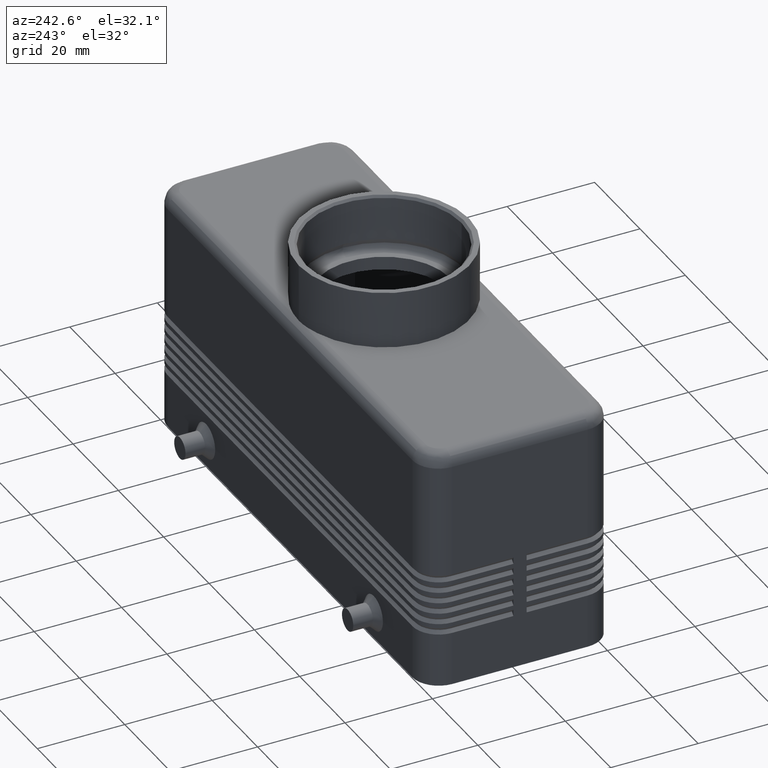
[diagram: clean part render]
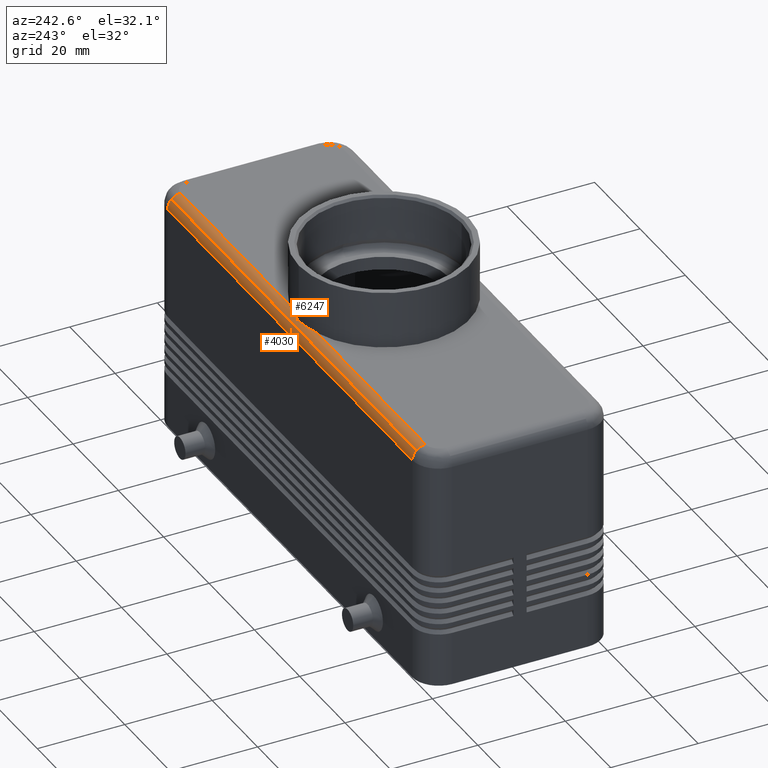
[diagram: same view with one multi-face feature highlighted, each face labeled with its STEP entity id]
A machine part, auxiliary view. The highlighted faces form ONE feature: a constant-radius fillet chain: 2 tangent blend faces with common blend radius 3 mm. The faces share edges in the B-rep.
Their STEP definitions:
[1] entity #4030 (Cylinder):
#2126=CARTESIAN_POINT('',(-53.999999999999986,21.500000000000000,52.000000000000021));
#2127=VERTEX_POINT('',#2126);
#3975=CARTESIAN_POINT('',(53.999999999999993,21.500000000000000,52.0));
#3976=VERTEX_POINT('',#3975);
#3993=CARTESIAN_POINT('',(29.999999999999996,18.500000000000000,52.0));
#3994=DIRECTION('',(-1.0,0.0,0.0));
#3995=DIRECTION('',(0.0,0.707106781186549,0.707106781186546));
#3996=AXIS2_PLACEMENT_3D('',#3993,#3994,#3995);
#3997=CYLINDRICAL_SURFACE('',#3996,3.000000000000000);
#3998=CARTESIAN_POINT('',(53.999999999999993,20.621320343559645,54.121320343559638));
#3999=VERTEX_POINT('',#3998);
#4000=CARTESIAN_POINT('',(-53.999999999999986,20.621320343559638,54.121320343559631));
#4001=VERTEX_POINT('',#4000);
#4002=CARTESIAN_POINT('',(53.999999999999993,20.621320343559645,54.121320343559638));
#4003=DIRECTION('',(-1.0,0.0,0.0));
#4004=VECTOR('',#4003,107.999999999999970);
#4005=LINE('',#4002,#4004);
#4006=EDGE_CURVE('',#3999,#4001,#4005,.T.);
#4007=ORIENTED_EDGE('',*,*,#4006,.F.);
#4008=CARTESIAN_POINT('',(53.999999999999993,18.500000000000000,52.0));
#4009=DIRECTION('',(1.0,0.0,0.0));
#4010=DIRECTION('',(0.0,1.0,0.0));
#4011=AXIS2_PLACEMENT_3D('',#4008,#4009,#4010);
#4012=CIRCLE('',#4011,3.000000000000000);
#4013=EDGE_CURVE('',#3976,#3999,#4012,.T.);
#4014=ORIENTED_EDGE('',*,*,#4013,.F.);
#4015=CARTESIAN_POINT('',(53.999999999999993,21.500000000000000,52.0));
#4016=DIRECTION('',(-1.0,0.0,0.0));
#4017=VECTOR('',#4016,107.999999999999970);
#4018=LINE('',#4015,#4017);
#4019=EDGE_CURVE('',#3976,#2127,#4018,.T.);
#4020=ORIENTED_EDGE('',*,*,#4019,.T.);
#4021=CARTESIAN_POINT('',(-53.999999999999986,18.499999999999996,52.000000000000021));
#4022=DIRECTION('',(-1.0,0.0,0.0));
#4023=DIRECTION('',(0.0,0.0,1.0));
#4024=AXIS2_PLACEMENT_3D('',#4021,#4022,#4023);
#4025=CIRCLE('',#4024,2.999999999999981);
#4026=EDGE_CURVE('',#4001,#2127,#4025,.T.);
#4027=ORIENTED_EDGE('',*,*,#4026,.F.);
#4028=EDGE_LOOP('',(#4007,#4014,#4020,#4027));
#4029=FACE_OUTER_BOUND('',#4028,.T.);
#4030=ADVANCED_FACE('',(#4029),#3997,.T.);
[2] entity #6247 (Cylinder):
#3998=CARTESIAN_POINT('',(53.999999999999993,20.621320343559645,54.121320343559638));
#3999=VERTEX_POINT('',#3998);
#4000=CARTESIAN_POINT('',(-53.999999999999986,20.621320343559638,54.121320343559631));
#4001=VERTEX_POINT('',#4000);
#4002=CARTESIAN_POINT('',(53.999999999999993,20.621320343559645,54.121320343559638));
#4003=DIRECTION('',(-1.0,0.0,0.0));
#4004=VECTOR('',#4003,107.999999999999970);
#4005=LINE('',#4002,#4004);
#4006=EDGE_CURVE('',#3999,#4001,#4005,.T.);
#4746=CARTESIAN_POINT('',(-1.082969E-015,19.499999999999996,54.828427124746192));
#4747=VERTEX_POINT('',#4746);
#4782=CARTESIAN_POINT('',(6.164414002968979,18.500000000000000,55.0));
#4783=VERTEX_POINT('',#4782);
#4791=CARTESIAN_POINT('',(-1.082969E-015,19.499999999999996,54.828427124746192));
#4792=CARTESIAN_POINT('',(1.279961542061538,19.499999999999996,54.828427124746192));
#4793=CARTESIAN_POINT('',(2.672895407569611,19.365767185609325,54.887215126183193));
#4794=CARTESIAN_POINT('',(4.758229113728448,18.925153943836435,54.973843878181583));
#4795=CARTESIAN_POINT('',(5.476012856099071,18.729383225374310,55.0));
#4796=CARTESIAN_POINT('',(6.164414002968979,18.500000000000000,55.0));
#4797=B_SPLINE_CURVE_WITH_KNOTS('',3,(#4791,#4792,#4793,#4794,#4795,#4796),.UNSPECIFIED.,.F.,.U.,(4,2,4),(1.332624346072310,1.716612808690772,1.922147241198828),.UNSPECIFIED.);
#4798=EDGE_CURVE('',#4747,#4783,#4797,.T.);
#5170=CARTESIAN_POINT('',(-6.164414002968979,18.500000000000000,55.0));
#5171=VERTEX_POINT('',#5170);
#5179=CARTESIAN_POINT('',(-53.999999999999986,18.499999999999996,55.0));
#5180=VERTEX_POINT('',#5179);
#5181=CARTESIAN_POINT('',(-53.999999999999986,18.499999999999996,55.0));
#5182=DIRECTION('',(1.0,0.0,0.0));
#5183=VECTOR('',#5182,47.835585997031004);
#5184=LINE('',#5181,#5183);
#5185=EDGE_CURVE('',#5180,#5171,#5184,.T.);
#5353=CARTESIAN_POINT('',(-6.164414002968979,18.500000000000000,55.0));
#5354=CARTESIAN_POINT('',(-5.476012856099072,18.729383225374310,55.0));
#5355=CARTESIAN_POINT('',(-4.758229113728446,18.925153943836435,54.973843878181576));
#5356=CARTESIAN_POINT('',(-2.672895407569612,19.365767185609325,54.887215126183193));
#5357=CARTESIAN_POINT('',(-1.279961542061541,19.499999999999996,54.828427124746192));
#5358=CARTESIAN_POINT('',(-1.082969E-015,19.499999999999996,54.828427124746192));
#5359=B_SPLINE_CURVE_WITH_KNOTS('',3,(#5353,#5354,#5355,#5356,#5357,#5358),.UNSPECIFIED.,.F.,.U.,(4,2,4),(0.743101450945792,0.948635883453848,1.332624346072310),.UNSPECIFIED.);
#5360=EDGE_CURVE('',#5171,#4747,#5359,.T.);
#6123=CARTESIAN_POINT('',(-53.999999999999986,18.499999999999996,52.000000000000021));
#6124=DIRECTION('',(-1.0,0.0,0.0));
#6125=DIRECTION('',(0.0,0.0,1.0));
#6126=AXIS2_PLACEMENT_3D('',#6123,#6124,#6125);
#6127=CIRCLE('',#6126,2.999999999999981);
#6128=EDGE_CURVE('',#5180,#4001,#6127,.T.);
#6199=CARTESIAN_POINT('',(53.999999999999993,18.500000000000000,55.0));
#6200=VERTEX_POINT('',#6199);
#6201=CARTESIAN_POINT('',(53.999999999999993,18.500000000000000,52.0));
#6202=DIRECTION('',(1.0,0.0,0.0));
#6203=DIRECTION('',(0.0,1.0,0.0));
#6204=AXIS2_PLACEMENT_3D('',#6201,#6202,#6203);
#6205=CIRCLE('',#6204,3.000000000000000);
#6206=EDGE_CURVE('',#3999,#6200,#6205,.T.);
#6228=CARTESIAN_POINT('',(29.999999999999996,18.500000000000000,52.0));
#6229=DIRECTION('',(-1.0,0.0,0.0));
#6230=DIRECTION('',(0.0,0.707106781186549,0.707106781186546));
#6231=AXIS2_PLACEMENT_3D('',#6228,#6229,#6230);
#6232=CYLINDRICAL_SURFACE('',#6231,3.000000000000000);
#6233=ORIENTED_EDGE('',*,*,#4006,.T.);
#6234=ORIENTED_EDGE('',*,*,#6128,.F.);
#6235=ORIENTED_EDGE('',*,*,#5185,.T.);
#6236=ORIENTED_EDGE('',*,*,#5360,.T.);
#6237=ORIENTED_EDGE('',*,*,#4798,.T.);
#6238=CARTESIAN_POINT('',(6.164414002968979,18.500000000000000,55.0));
#6239=DIRECTION('',(1.0,0.0,0.0));
#6240=VECTOR('',#6239,47.835585997031018);
#6241=LINE('',#6238,#6240);
#6242=EDGE_CURVE('',#4783,#6200,#6241,.T.);
#6243=ORIENTED_EDGE('',*,*,#6242,.T.);
#6244=ORIENTED_EDGE('',*,*,#6206,.F.);
#6245=EDGE_LOOP('',(#6233,#6234,#6235,#6236,#6237,#6243,#6244));
#6246=FACE_OUTER_BOUND('',#6245,.T.);
#6247=ADVANCED_FACE('',(#6246),#6232,.T.);